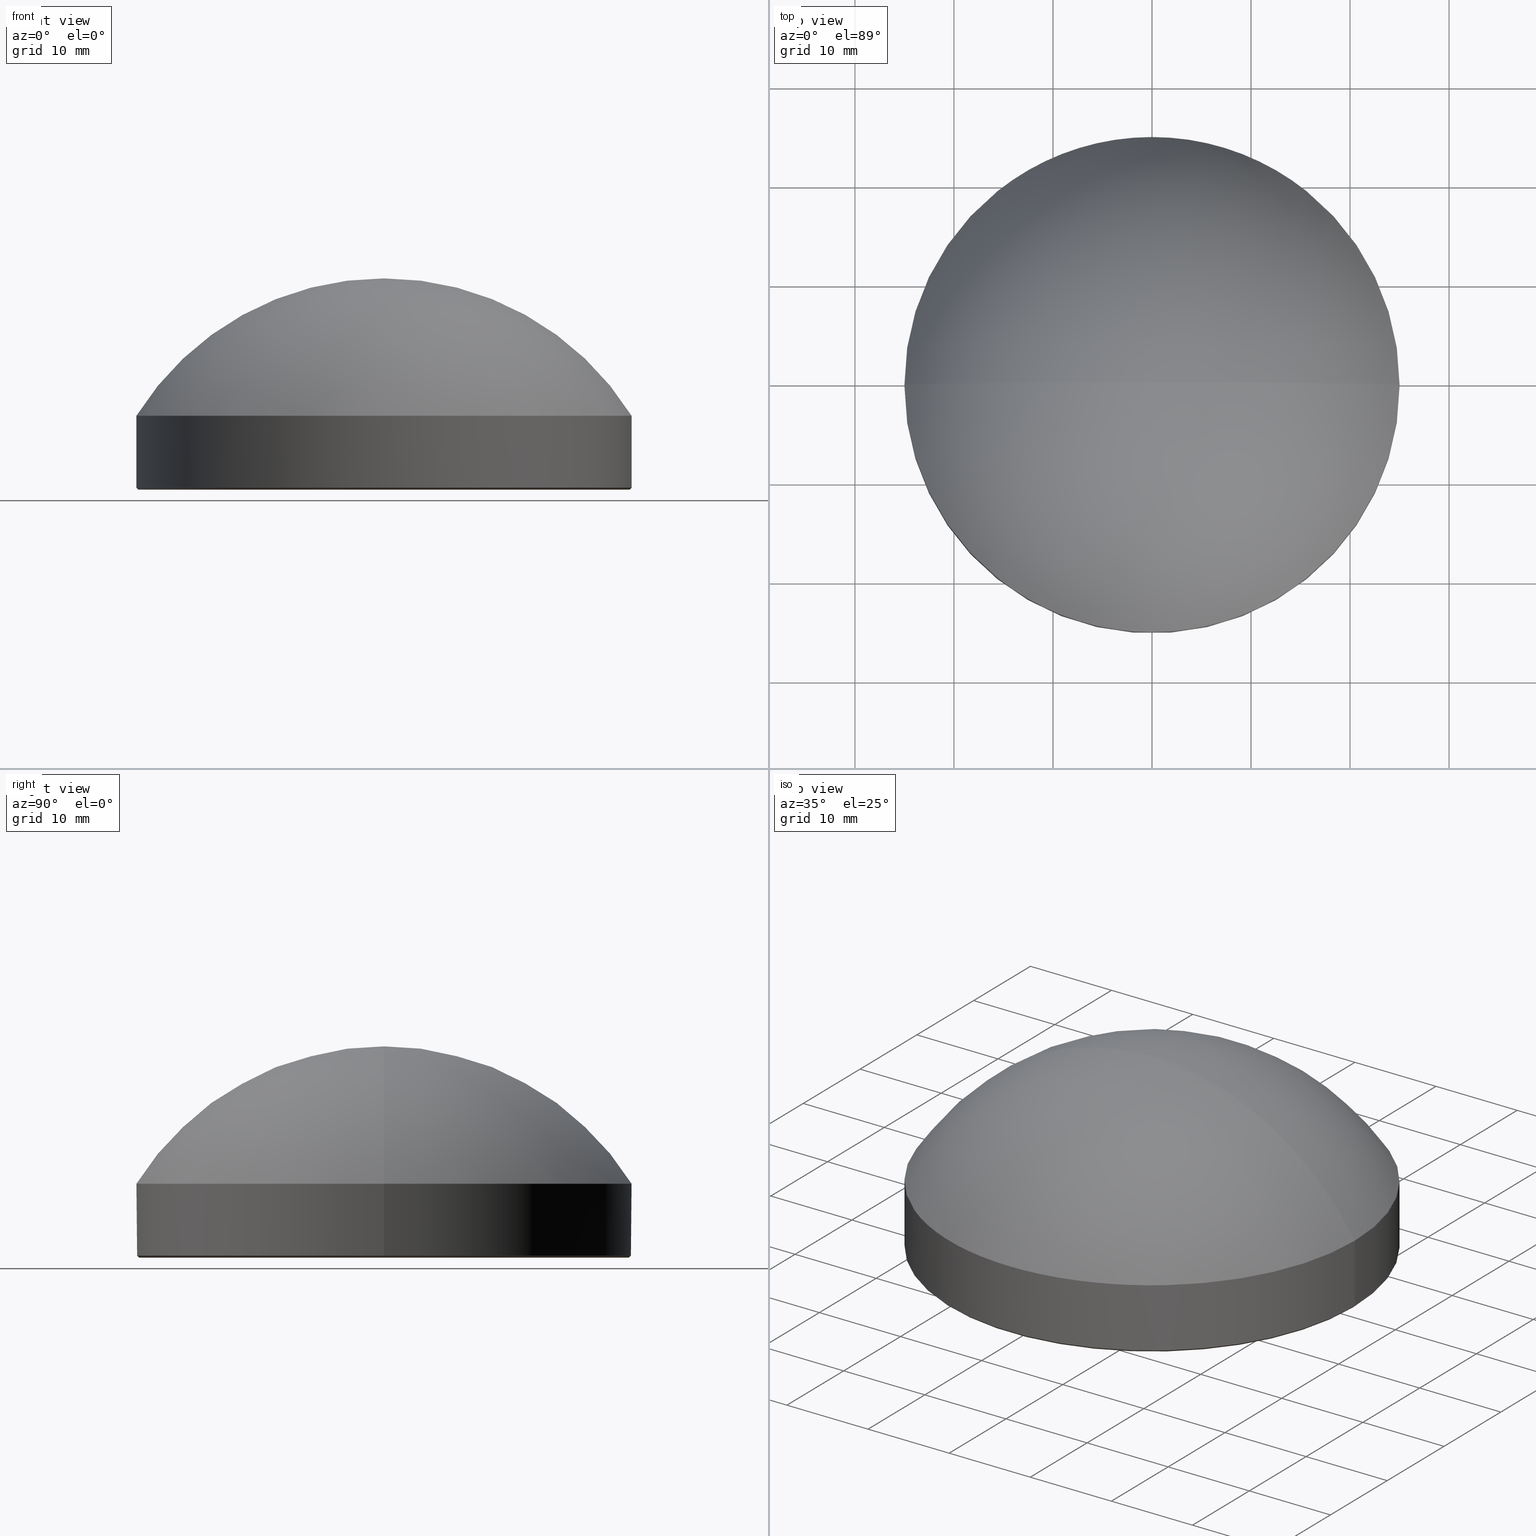
[diagram: canonical four-view strip — front | top / right | iso, engineering-drawing reading convention]
A machine part, canonical four-view strip (front | top / right | iso — engineering-drawing reading convention). The complete STEP part file that produces these views, byte-faithful:
ISO-10303-21;
HEADER;
FILE_DESCRIPTION (( 'STEP AP214' ),
    '1' );
FILE_NAME ('GLA11-050-37.5-H-VIS.STEP',
    '2024-08-09T08:40:23',
    ( 'Windows User' ),
    ( 'P R C' ),
    'SwSTEP 2.0',
    'SolidWorks 2022',
    '' );
FILE_SCHEMA (( 'AUTOMOTIVE_DESIGN' ));
ENDSEC;

DATA;
#1 =( LENGTH_UNIT ( ) NAMED_UNIT ( * ) SI_UNIT ( .MILLI., .METRE. ) );
#2 = ORIENTED_EDGE ( 'NONE', *, *, #145, .F. ) ;
#3 = DIRECTION ( 'NONE',  ( -0.000000000000000000, -0.000000000000000000, 1.000000000000000000 ) ) ;
#4 = VECTOR ( 'NONE', #203, 1000.000000000000114 ) ;
#5 = FILL_AREA_STYLE_COLOUR ( '', #195 ) ;
#6 = LINE ( 'NONE', #68, #162 ) ;
#7 = MECHANICAL_DESIGN_GEOMETRIC_PRESENTATION_REPRESENTATION (  '', ( #25 ), #52 ) ;
#8 = CARTESIAN_POINT ( 'NONE',  ( 0.000000000000000000, 0.000000000000000000, 0.000000000000000000 ) ) ;
#9 = CYLINDRICAL_SURFACE ( 'NONE', #171, 25.00000000000000000 ) ;
#10 = FACE_OUTER_BOUND ( 'NONE', #107, .T. ) ;
#11 = ORIENTED_EDGE ( 'NONE', *, *, #87, .T. ) ;
#12 = CARTESIAN_POINT ( 'NONE',  ( 25.00000000000000000, 3.061616997868382254E-15, 7.469999999999999751 ) ) ;
#13 = DIRECTION ( 'NONE',  ( 1.000000000000000000, 0.000000000000000000, 0.000000000000000000 ) ) ;
#14 = DIRECTION ( 'NONE',  ( -1.224646799147353207E-16, -1.000000000000000000, -0.000000000000000000 ) ) ;
#15 = DIRECTION ( 'NONE',  ( -0.7071067811865474617, 8.659560562354932858E-17, 0.7071067811865474617 ) ) ;
#16 = PRODUCT_DEFINITION_CONTEXT ( 'detailed design', #125, 'design' ) ;
#17 = AXIS2_PLACEMENT_3D ( 'NONE', #8, #151, #168 ) ;
#18 = CARTESIAN_POINT ( 'NONE',  ( 0.000000000000000000, 0.000000000000000000, 7.469999999999999751 ) ) ;
#19 = SURFACE_SIDE_STYLE ('',( #53 ) ) ;
#20 = PRESENTATION_LAYER_ASSIGNMENT (  '', '', ( #161 ) ) ;
#21 = CARTESIAN_POINT ( 'NONE',  ( 0.000000000000000000, 0.000000000000000000, 0.2000000000000196065 ) ) ;
#22 = ORIENTED_EDGE ( 'NONE', *, *, #182, .F. ) ;
#23 = VERTEX_POINT ( 'NONE', #202 ) ;
#24 = ORIENTED_EDGE ( 'NONE', *, *, #189, .T. ) ;
#25 = STYLED_ITEM ( 'NONE', ( #215 ), #97 ) ;
#26 = DIRECTION ( 'NONE',  ( -1.000000000000000000, 0.000000000000000000, 0.000000000000000000 ) ) ;
#27 = CARTESIAN_POINT ( 'NONE',  ( -25.00000000000000000, 3.061616997868383043E-15, 0.2000000000000196065 ) ) ;
#28 = ORIENTED_EDGE ( 'NONE', *, *, #112, .T. ) ;
#29 = CARTESIAN_POINT ( 'NONE',  ( 0.000000000000000000, 0.000000000000000000, 0.2000000000000196065 ) ) ;
#30 = SURFACE_STYLE_USAGE ( .BOTH. , #44 ) ;
#31 = DIRECTION ( 'NONE',  ( 0.000000000000000000, 0.000000000000000000, 1.000000000000000000 ) ) ;
#32 =( NAMED_UNIT ( * ) SI_UNIT ( $, .STERADIAN. ) SOLID_ANGLE_UNIT ( ) );
#33 = CARTESIAN_POINT ( 'NONE',  ( 25.00000000000000000, 3.061616997868382254E-15, 7.469999999999999751 ) ) ;
#34 =( NAMED_UNIT ( * ) PLANE_ANGLE_UNIT ( ) SI_UNIT ( $, .RADIAN. ) );
#35 =( LENGTH_UNIT ( ) NAMED_UNIT ( * ) SI_UNIT ( .MILLI., .METRE. ) );
#36 = AXIS2_PLACEMENT_3D ( 'NONE', #207, #89, #67 ) ;
#37 = APPLICATION_CONTEXT ( 'automotive_design' ) ;
#38 = EDGE_CURVE ( 'NONE', #191, #140, #214, .T. ) ;
#39 = EDGE_LOOP ( 'NONE', ( #206, #138, #120, #170 ) ) ;
#40 = ORIENTED_EDGE ( 'NONE', *, *, #87, .F. ) ;
#41 = AXIS2_PLACEMENT_3D ( 'NONE', #153, #201, #116 ) ;
#42 = ORIENTED_EDGE ( 'NONE', *, *, #117, .T. ) ;
#43 = CARTESIAN_POINT ( 'NONE',  ( 0.000000000000000000, 0.000000000000000000, -8.125641672674834837 ) ) ;
#44 = SURFACE_SIDE_STYLE ('',( #193 ) ) ;
#45 =( NAMED_UNIT ( * ) PLANE_ANGLE_UNIT ( ) SI_UNIT ( $, .RADIAN. ) );
#46 = AXIS2_PLACEMENT_3D ( 'NONE', #18, #83, #148 ) ;
#47 = CARTESIAN_POINT ( 'NONE',  ( 0.000000000000000000, 0.000000000000000000, -8.125641672674834837 ) ) ;
#48 = ORIENTED_EDGE ( 'NONE', *, *, #131, .T. ) ;
#49 = AXIS2_PLACEMENT_3D ( 'NONE', #154, #57, #108 ) ;
#50 = CARTESIAN_POINT ( 'NONE',  ( -25.00000000000000000, 0.000000000000000000, 0.2000000000000196065 ) ) ;
#51 = FACE_OUTER_BOUND ( 'NONE', #119, .T. ) ;
#52 =( GEOMETRIC_REPRESENTATION_CONTEXT ( 3 ) GLOBAL_UNCERTAINTY_ASSIGNED_CONTEXT ( ( #82 ) ) GLOBAL_UNIT_ASSIGNED_CONTEXT ( ( #1, #34, #32 ) ) REPRESENTATION_CONTEXT ( 'NONE', 'WORKASPACE' ) );
#53 = SURFACE_STYLE_FILL_AREA ( #186 ) ;
#54 = AXIS2_PLACEMENT_3D ( 'NONE', #47, #14, #111 ) ;
#55 = VERTEX_POINT ( 'NONE', #72 ) ;
#56 = ORIENTED_EDGE ( 'NONE', *, *, #121, .T. ) ;
#57 = DIRECTION ( 'NONE',  ( 0.000000000000000000, 0.000000000000000000, 1.000000000000000000 ) ) ;
#58 = PRODUCT ( 'GLA11-050-37.5-H-VIS', 'GLA11-050-37.5-H-VIS', '', ( #79 ) ) ;
#59 =( NAMED_UNIT ( * ) SI_UNIT ( $, .STERADIAN. ) SOLID_ANGLE_UNIT ( ) );
#60 =( NAMED_UNIT ( * ) PLANE_ANGLE_UNIT ( ) SI_UNIT ( $, .RADIAN. ) );
#61 = AXIS2_PLACEMENT_3D ( 'NONE', #141, #156, #211 ) ;
#62 = CIRCLE ( 'NONE', #91, 25.00000000000000000 ) ;
#63 = AXIS2_PLACEMENT_3D ( 'NONE', #43, #106, #174 ) ;
#64 = PRESENTATION_LAYER_ASSIGNMENT (  '', '', ( #25 ) ) ;
#65 = EDGE_CURVE ( 'NONE', #85, #137, #62, .T. ) ;
#66 = VERTEX_POINT ( 'NONE', #99 ) ;
#67 = DIRECTION ( 'NONE',  ( 1.000000000000000000, 0.000000000000000000, 0.000000000000000000 ) ) ;
#68 = CARTESIAN_POINT ( 'NONE',  ( -25.00000000000000000, 0.000000000000000000, 7.469999999999999751 ) ) ;
#69 = CIRCLE ( 'NONE', #113, 25.00000000000000000 ) ;
#70 = EDGE_LOOP ( 'NONE', ( #205, #123, #175 ) ) ;
#71 = AXIS2_PLACEMENT_3D ( 'NONE', #190, #102, #103 ) ;
#72 = CARTESIAN_POINT ( 'NONE',  ( -24.79999999999998295, 3.049370529876908502E-15, 0.000000000000000000 ) ) ;
#73 = ORIENTED_EDGE ( 'NONE', *, *, #164, .T. ) ;
#74 = PRODUCT_DEFINITION_SHAPE ( 'NONE', 'NONE',  #128 ) ;
#75 = DIRECTION ( 'NONE',  ( -0.000000000000000000, -0.000000000000000000, -1.000000000000000000 ) ) ;
#76 = FACE_OUTER_BOUND ( 'NONE', #77, .T. ) ;
#77 = EDGE_LOOP ( 'NONE', ( #56, #24, #22 ) ) ;
#78 = DIRECTION ( 'NONE',  ( -0.000000000000000000, -0.000000000000000000, -1.000000000000000000 ) ) ;
#79 = PRODUCT_CONTEXT ( 'NONE', #37, 'mechanical' ) ;
#80 = FACE_OUTER_BOUND ( 'NONE', #39, .T. ) ;
#81 = AXIS2_PLACEMENT_3D ( 'NONE', #29, #144, #212 ) ;
#82 = UNCERTAINTY_MEASURE_WITH_UNIT (LENGTH_MEASURE( 1.000000000000000082E-05 ), #1, 'distance_accuracy_value', 'NONE');
#83 = DIRECTION ( 'NONE',  ( 0.000000000000000000, 0.000000000000000000, 1.000000000000000000 ) ) ;
#84 = CARTESIAN_POINT ( 'NONE',  ( -25.00000000000000000, 0.000000000000000000, 7.469999999999999751 ) ) ;
#85 = VERTEX_POINT ( 'NONE', #169 ) ;
#86 = ORIENTED_EDGE ( 'NONE', *, *, #164, .F. ) ;
#87 = EDGE_CURVE ( 'NONE', #55, #23, #129, .T. ) ;
#88 = CIRCLE ( 'NONE', #54, 29.46564167267484180 ) ;
#89 = DIRECTION ( 'NONE',  ( -0.000000000000000000, -0.000000000000000000, -1.000000000000000000 ) ) ;
#90 = ORIENTED_EDGE ( 'NONE', *, *, #131, .F. ) ;
#91 = AXIS2_PLACEMENT_3D ( 'NONE', #163, #134, #150 ) ;
#92 =( LENGTH_UNIT ( ) NAMED_UNIT ( * ) SI_UNIT ( .MILLI., .METRE. ) );
#93 = SHAPE_DEFINITION_REPRESENTATION ( #74, #97 ) ;
#94 = VECTOR ( 'NONE', #15, 1000.000000000000114 ) ;
#95 = APPLICATION_PROTOCOL_DEFINITION ( 'draft international standard', 'automotive_design', 1998, #125 ) ;
#96 = CARTESIAN_POINT ( 'NONE',  ( 0.000000000000000000, 0.000000000000000000, 0.000000000000000000 ) ) ;
#97 = ADVANCED_BREP_SHAPE_REPRESENTATION ( 'GLA11-050-37.5-H-VIS', ( #146, #157 ), #109 ) ;
#98 = CLOSED_SHELL ( 'NONE', ( #216, #160, #185, #158, #147, #149, #105 ) ) ;
#99 = CARTESIAN_POINT ( 'NONE',  ( -1.804250187963205365E-15, 0.000000000000000000, 21.34000000000000341 ) ) ;
#100 = ORIENTED_EDGE ( 'NONE', *, *, #121, .F. ) ;
#101 = AXIS2_PLACEMENT_3D ( 'NONE', #180, #130, #31 ) ;
#102 = DIRECTION ( 'NONE',  ( 0.000000000000000000, 0.000000000000000000, 1.000000000000000000 ) ) ;
#103 = DIRECTION ( 'NONE',  ( 1.000000000000000000, 0.000000000000000000, 0.000000000000000000 ) ) ;
#104 = FACE_OUTER_BOUND ( 'NONE', #70, .T. ) ;
#105 = ADVANCED_FACE ( 'NONE', ( #51 ), #184, .T. ) ;
#106 = DIRECTION ( 'NONE',  ( -0.000000000000000000, -1.000000000000000000, 0.000000000000000000 ) ) ;
#107 = EDGE_LOOP ( 'NONE', ( #159, #100, #28, #48 ) ) ;
#108 = DIRECTION ( 'NONE',  ( 1.000000000000000000, 0.000000000000000000, -0.000000000000000000 ) ) ;
#109 =( GEOMETRIC_REPRESENTATION_CONTEXT ( 3 ) GLOBAL_UNCERTAINTY_ASSIGNED_CONTEXT ( ( #198 ) ) GLOBAL_UNIT_ASSIGNED_CONTEXT ( ( #35, #60, #127 ) ) REPRESENTATION_CONTEXT ( 'NONE', 'WORKASPACE' ) );
#110 = LINE ( 'NONE', #33, #178 ) ;
#111 = DIRECTION ( 'NONE',  ( 1.000000000000000000, -1.224646799147353207E-16, 0.000000000000000000 ) ) ;
#112 = EDGE_CURVE ( 'NONE', #140, #137, #6, .T. ) ;
#113 = AXIS2_PLACEMENT_3D ( 'NONE', #21, #3, #133 ) ;
#114 = PLANE ( 'NONE',  #49 ) ;
#115 = EDGE_LOOP ( 'NONE', ( #42, #11 ) ) ;
#116 = DIRECTION ( 'NONE',  ( 1.000000000000000000, 0.000000000000000000, 0.000000000000000000 ) ) ;
#117 = EDGE_CURVE ( 'NONE', #23, #55, #187, .T. ) ;
#118 = SURFACE_STYLE_USAGE ( .BOTH. , #19 ) ;
#119 = EDGE_LOOP ( 'NONE', ( #86, #152, #173, #90 ) ) ;
#120 = ORIENTED_EDGE ( 'NONE', *, *, #65, .T. ) ;
#121 = EDGE_CURVE ( 'NONE', #140, #191, #183, .T. ) ;
#122 = DIRECTION ( 'NONE',  ( -0.000000000000000000, -0.000000000000000000, -1.000000000000000000 ) ) ;
#123 = ORIENTED_EDGE ( 'NONE', *, *, #38, .T. ) ;
#124 = LINE ( 'NONE', #27, #94 ) ;
#125 = APPLICATION_CONTEXT ( 'automotive_design' ) ;
#126 = FACE_OUTER_BOUND ( 'NONE', #115, .T. ) ;
#127 =( NAMED_UNIT ( * ) SI_UNIT ( $, .STERADIAN. ) SOLID_ANGLE_UNIT ( ) );
#128 = PRODUCT_DEFINITION ( 'δ֪', '', #132, #16 ) ;
#129 = CIRCLE ( 'NONE', #36, 24.79999999999998295 ) ;
#130 = DIRECTION ( 'NONE',  ( 0.000000000000000000, 1.000000000000000000, 0.000000000000000000 ) ) ;
#131 = EDGE_CURVE ( 'NONE', #137, #85, #69, .T. ) ;
#132 = PRODUCT_DEFINITION_FORMATION_WITH_SPECIFIED_SOURCE ( '�κ�', '', #58, .NOT_KNOWN. ) ;
#133 = DIRECTION ( 'NONE',  ( 1.000000000000000000, 0.000000000000000000, 0.000000000000000000 ) ) ;
#134 = DIRECTION ( 'NONE',  ( -0.000000000000000000, -0.000000000000000000, 1.000000000000000000 ) ) ;
#135 = CARTESIAN_POINT ( 'NONE',  ( 25.00000000000000000, 0.000000000000000000, 0.2000000000000196065 ) ) ;
#136 = COLOUR_RGB ( '',1.000000000000000000, 1.000000000000000000, 1.000000000000000000 ) ;
#137 = VERTEX_POINT ( 'NONE', #50 ) ;
#138 = ORIENTED_EDGE ( 'NONE', *, *, #208, .T. ) ;
#139 = ORIENTED_EDGE ( 'NONE', *, *, #65, .F. ) ;
#140 = VERTEX_POINT ( 'NONE', #84 ) ;
#141 = CARTESIAN_POINT ( 'NONE',  ( 0.000000000000000000, 0.000000000000000000, 7.469999999999999751 ) ) ;
#142 = CARTESIAN_POINT ( 'NONE',  ( 0.000000000000000000, 0.000000000000000000, 7.469999999999999751 ) ) ;
#143 = FACE_OUTER_BOUND ( 'NONE', #166, .T. ) ;
#144 = DIRECTION ( 'NONE',  ( -0.000000000000000000, -0.000000000000000000, 1.000000000000000000 ) ) ;
#145 = EDGE_CURVE ( 'NONE', #23, #85, #165, .T. ) ;
#146 = MANIFOLD_SOLID_BREP ( '����1', #98 ) ;
#147 = ADVANCED_FACE ( 'NONE', ( #126 ), #114, .F. ) ;
#148 = DIRECTION ( 'NONE',  ( 1.000000000000000000, 0.000000000000000000, 0.000000000000000000 ) ) ;
#149 = ADVANCED_FACE ( 'NONE', ( #104 ), #172, .T. ) ;
#150 = DIRECTION ( 'NONE',  ( 1.000000000000000000, 0.000000000000000000, 0.000000000000000000 ) ) ;
#151 = DIRECTION ( 'NONE',  ( -0.000000000000000000, -0.000000000000000000, -1.000000000000000000 ) ) ;
#152 = ORIENTED_EDGE ( 'NONE', *, *, #117, .F. ) ;
#153 = CARTESIAN_POINT ( 'NONE',  ( 0.000000000000000000, 0.000000000000000000, 0.2000000000000196065 ) ) ;
#154 = CARTESIAN_POINT ( 'NONE',  ( 0.000000000000000000, 0.000000000000000000, 0.000000000000000000 ) ) ;
#155 = CARTESIAN_POINT ( 'NONE',  ( 0.000000000000000000, 0.000000000000000000, -8.125641672674834837 ) ) ;
#156 = DIRECTION ( 'NONE',  ( -0.000000000000000000, -0.000000000000000000, -1.000000000000000000 ) ) ;
#157 = AXIS2_PLACEMENT_3D ( 'NONE', #96, #213, #13 ) ;
#158 = ADVANCED_FACE ( 'NONE', ( #10 ), #9, .T. ) ;
#159 = ORIENTED_EDGE ( 'NONE', *, *, #208, .F. ) ;
#160 = ADVANCED_FACE ( 'NONE', ( #76 ), #192, .T. ) ;
#161 = STYLED_ITEM ( 'NONE', ( #188 ), #146 ) ;
#162 = VECTOR ( 'NONE', #122, 1000.000000000000000 ) ;
#163 = CARTESIAN_POINT ( 'NONE',  ( 0.000000000000000000, 0.000000000000000000, 0.2000000000000196065 ) ) ;
#164 = EDGE_CURVE ( 'NONE', #55, #137, #124, .T. ) ;
#165 = LINE ( 'NONE', #135, #4 ) ;
#166 = EDGE_LOOP ( 'NONE', ( #40, #73, #139, #2 ) ) ;
#167 =( GEOMETRIC_REPRESENTATION_CONTEXT ( 3 ) GLOBAL_UNCERTAINTY_ASSIGNED_CONTEXT ( ( #197 ) ) GLOBAL_UNIT_ASSIGNED_CONTEXT ( ( #92, #45, #59 ) ) REPRESENTATION_CONTEXT ( 'NONE', 'WORKASPACE' ) );
#168 = DIRECTION ( 'NONE',  ( 1.000000000000000000, 0.000000000000000000, 0.000000000000000000 ) ) ;
#169 = CARTESIAN_POINT ( 'NONE',  ( 25.00000000000000000, 3.061616997868382254E-15, 0.2000000000000196065 ) ) ;
#170 = ORIENTED_EDGE ( 'NONE', *, *, #112, .F. ) ;
#171 = AXIS2_PLACEMENT_3D ( 'NONE', #142, #75, #210 ) ;
#172 = SPHERICAL_SURFACE ( 'NONE', #199, 29.46564167267484180 ) ;
#173 = ORIENTED_EDGE ( 'NONE', *, *, #145, .T. ) ;
#174 = DIRECTION ( 'NONE',  ( -1.000000000000000000, 0.000000000000000000, 0.000000000000000000 ) ) ;
#175 = ORIENTED_EDGE ( 'NONE', *, *, #182, .T. ) ;
#176 = PRODUCT_RELATED_PRODUCT_CATEGORY ( 'part', '', ( #58 ) ) ;
#177 = DIRECTION ( 'NONE',  ( -0.000000000000000000, -1.000000000000000000, 0.000000000000000000 ) ) ;
#178 = VECTOR ( 'NONE', #78, 1000.000000000000000 ) ;
#179 = APPLICATION_PROTOCOL_DEFINITION ( 'draft international standard', 'automotive_design', 1998, #37 ) ;
#180 = CARTESIAN_POINT ( 'NONE',  ( 0.000000000000000000, 0.000000000000000000, -8.125641672674834837 ) ) ;
#181 = MECHANICAL_DESIGN_GEOMETRIC_PRESENTATION_REPRESENTATION (  '', ( #161 ), #167 ) ;
#182 = EDGE_CURVE ( 'NONE', #140, #66, #200, .T. ) ;
#183 = CIRCLE ( 'NONE', #46, 25.00000000000000000 ) ;
#184 = CONICAL_SURFACE ( 'NONE', #41, 25.00000000000000000, 0.7853981633974482790 ) ;
#185 = ADVANCED_FACE ( 'NONE', ( #80 ), #194, .T. ) ;
#186 = FILL_AREA_STYLE ('',( #5 ) ) ;
#187 = CIRCLE ( 'NONE', #17, 24.79999999999998295 ) ;
#188 = PRESENTATION_STYLE_ASSIGNMENT (( #118 ) ) ;
#189 = EDGE_CURVE ( 'NONE', #191, #66, #88, .T. ) ;
#190 = CARTESIAN_POINT ( 'NONE',  ( 0.000000000000000000, 0.000000000000000000, 7.469999999999999751 ) ) ;
#191 = VERTEX_POINT ( 'NONE', #12 ) ;
#192 = SPHERICAL_SURFACE ( 'NONE', #63, 29.46564167267484180 ) ;
#193 = SURFACE_STYLE_FILL_AREA ( #209 ) ;
#194 = CYLINDRICAL_SURFACE ( 'NONE', #61, 25.00000000000000000 ) ;
#195 = COLOUR_RGB ( '',1.000000000000000000, 1.000000000000000000, 1.000000000000000000 ) ;
#196 = FILL_AREA_STYLE_COLOUR ( '', #136 ) ;
#197 = UNCERTAINTY_MEASURE_WITH_UNIT (LENGTH_MEASURE( 1.000000000000000082E-05 ), #92, 'distance_accuracy_value', 'NONE');
#198 = UNCERTAINTY_MEASURE_WITH_UNIT (LENGTH_MEASURE( 1.000000000000000082E-05 ), #35, 'distance_accuracy_value', 'NONE');
#199 = AXIS2_PLACEMENT_3D ( 'NONE', #155, #177, #26 ) ;
#200 = CIRCLE ( 'NONE', #101, 29.46564167267484180 ) ;
#201 = DIRECTION ( 'NONE',  ( -0.000000000000000000, -0.000000000000000000, 1.000000000000000000 ) ) ;
#202 = CARTESIAN_POINT ( 'NONE',  ( 24.79999999999998295, 0.000000000000000000, 0.000000000000000000 ) ) ;
#203 = DIRECTION ( 'NONE',  ( 0.7071067811865474617, 0.000000000000000000, 0.7071067811865474617 ) ) ;
#204 = CONICAL_SURFACE ( 'NONE', #81, 25.00000000000000000, 0.7853981633974482790 ) ;
#205 = ORIENTED_EDGE ( 'NONE', *, *, #189, .F. ) ;
#206 = ORIENTED_EDGE ( 'NONE', *, *, #38, .F. ) ;
#207 = CARTESIAN_POINT ( 'NONE',  ( 0.000000000000000000, 0.000000000000000000, 0.000000000000000000 ) ) ;
#208 = EDGE_CURVE ( 'NONE', #191, #85, #110, .T. ) ;
#209 = FILL_AREA_STYLE ('',( #196 ) ) ;
#210 = DIRECTION ( 'NONE',  ( -1.000000000000000000, 0.000000000000000000, 0.000000000000000000 ) ) ;
#211 = DIRECTION ( 'NONE',  ( -1.000000000000000000, 0.000000000000000000, 0.000000000000000000 ) ) ;
#212 = DIRECTION ( 'NONE',  ( 1.000000000000000000, 0.000000000000000000, 0.000000000000000000 ) ) ;
#213 = DIRECTION ( 'NONE',  ( 0.000000000000000000, 0.000000000000000000, 1.000000000000000000 ) ) ;
#214 = CIRCLE ( 'NONE', #71, 25.00000000000000000 ) ;
#215 = PRESENTATION_STYLE_ASSIGNMENT (( #30 ) ) ;
#216 = ADVANCED_FACE ( 'NONE', ( #143 ), #204, .T. ) ;
ENDSEC;
END-ISO-10303-21;
